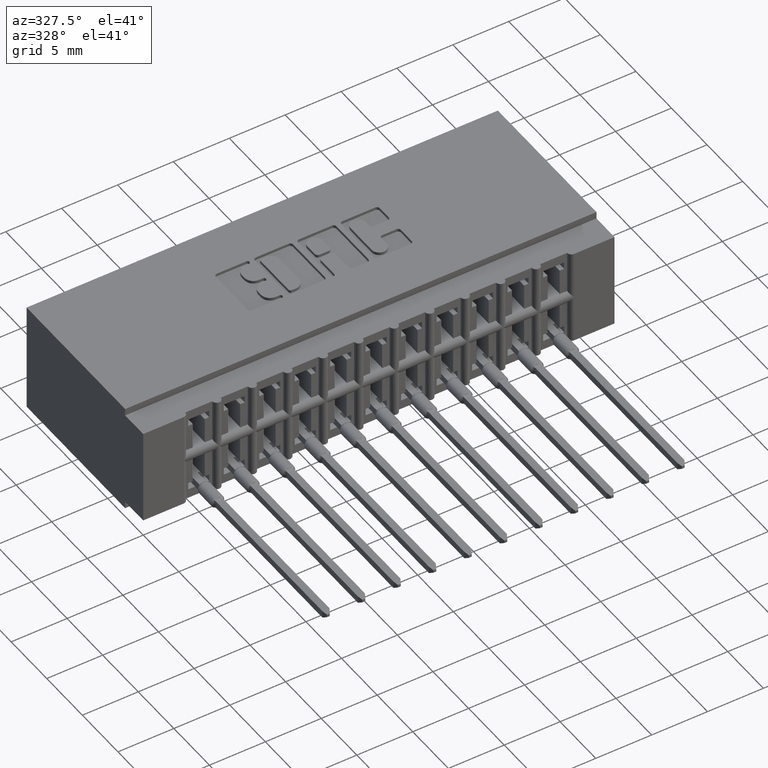
[diagram: clean part render]
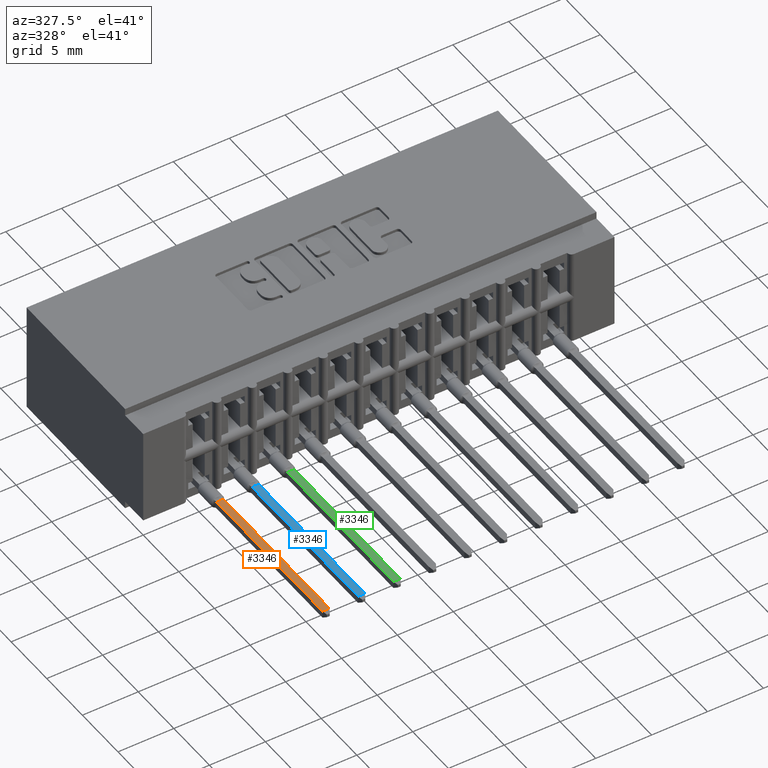
[diagram: same view with three faces highlighted in distinct colors, each labeled with its STEP entity id]
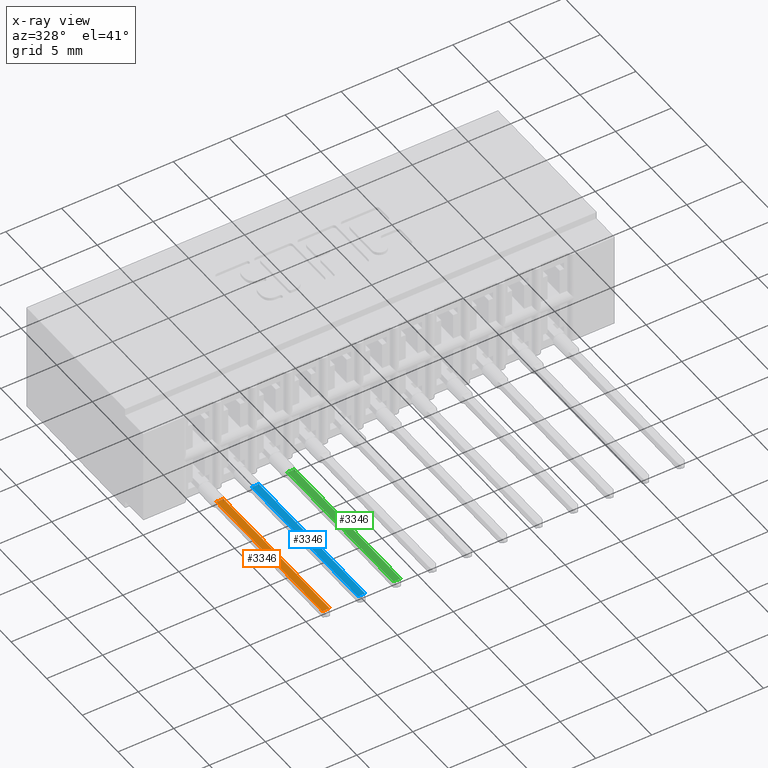
[diagram: x-ray of the same camera — body ghosted, the three highlighted faces saturated]
A machine part, auxiliary view with three faces highlighted in distinct colors.
The next image is the same camera in x-ray (body ghosted, the three faces saturated) — at least one of them is partly hidden behind the body in this view.
Their STEP definitions:

[orange] entity #3346 — the highlighted planar face has unit normal (0, 0, -1).
#190 = CARTESIAN_POINT ( 'NONE',  ( -0.001499999999998877665, 0.01250000000000013947, 0.08938749456993817788 ) ) ;
#882 = CARTESIAN_POINT ( 'NONE',  ( -0.001499999999998877665, 0.01250000000000013947, 0.08938749456993817788 ) ) ;
#1229 = DIRECTION ( 'NONE',  ( -3.432371129255528685E-15, 2.281027080316455145E-22, -1.000000000000000000 ) ) ;
#1364 = EDGE_CURVE ( 'NONE', #4907, #13521, #5957, .T. ) ;
#1531 = CARTESIAN_POINT ( 'NONE',  ( 0.01250277416173494090, 0.01250000000000000243, 0.08806058185612174183 ) ) ;
#1550 = CARTESIAN_POINT ( 'NONE',  ( -0.01250277416173248106, 0.01249999999999822781, 0.08806058185612021527 ) ) ;
#1777 = ORIENTED_EDGE ( 'NONE', *, *, #19561, .T. ) ;
#1921 = ORIENTED_EDGE ( 'NONE', *, *, #1364, .F. ) ;
#2021 = VERTEX_POINT ( 'NONE', #5388 ) ;
#2956 = B_SPLINE_CURVE_WITH_KNOTS ( 'NONE', 3,
 ( #190, #16468, #3589, #9658 ),
 .UNSPECIFIED., .F., .F.,
 ( 4, 4 ),
 ( 0.0000000000000000000, 0.0002821157609885972155 ),
 .UNSPECIFIED. ) ;
#3346 = ADVANCED_FACE ( 'NONE', ( #16024 ), #9425, .F. ) ;
#3589 = CARTESIAN_POINT ( 'NONE',  ( -0.008922339816379170480, 0.01249999999999822607, 0.08902420542786070035 ) ) ;
#4070 = ORIENTED_EDGE ( 'NONE', *, *, #18265, .T. ) ;
#4104 = LINE ( 'NONE', #7496, #4233 ) ;
#4233 = VECTOR ( 'NONE', #17391, 39.37007874015748143 ) ;
#4306 = DIRECTION ( 'NONE',  ( -3.432371129255528685E-15, 2.281027080316455145E-22, -1.000000000000000000 ) ) ;
#4546 = VECTOR ( 'NONE', #6058, 39.37007874015748143 ) ;
#4620 = ORIENTED_EDGE ( 'NONE', *, *, #15757, .T. ) ;
#4634 = CARTESIAN_POINT ( 'NONE',  ( 0.01250000000000130174, 0.01250000000000000243, 0.08836055168419777728 ) ) ;
#4760 = ORIENTED_EDGE ( 'NONE', *, *, #7635, .T. ) ;
#4856 = CARTESIAN_POINT ( 'NONE',  ( -0.01249999999999802311, 0.01249999999999822781, 0.1332500000000000073 ) ) ;
#4907 = VERTEX_POINT ( 'NONE', #13668 ) ;
#5326 = B_SPLINE_CURVE_WITH_KNOTS ( 'NONE', 3,
 ( #19440, #19120, #12743, #16150 ),
 .UNSPECIFIED., .F., .F.,
 ( 4, 4 ),
 ( -2.177742611627300596E-07, 0.0002818979867274307486 ),
 .UNSPECIFIED. ) ;
#5388 = CARTESIAN_POINT ( 'NONE',  ( 0.01250000000000130174, 0.01250000000000000243, 0.08836055168419777728 ) ) ;
#5624 = B_SPLINE_CURVE_WITH_KNOTS ( 'NONE', 3,
 ( #4634, #5995, #1531, #17502 ),
 .UNSPECIFIED., .F., .F.,
 ( 4, 4 ),
 ( 0.0000000000000000000, 1.142788424384338987E-05 ),
 .UNSPECIFIED. ) ;
#5957 = LINE ( 'NONE', #20632, #4546 ) ;
#5995 = CARTESIAN_POINT ( 'NONE',  ( 0.01250000000000130174, 0.01250000000000000243, 0.08821057945002661049 ) ) ;
#6058 = DIRECTION ( 'NONE',  ( -3.432371129255528685E-15, 2.281027080316455145E-22, -1.000000000000000000 ) ) ;
#6240 = DIRECTION ( 'NONE',  ( -1.000000000000000000, 8.281337601605895209E-16, -3.432371129255472282E-15 ) ) ;
#6457 = LINE ( 'NONE', #19542, #6851 ) ;
#6851 = VECTOR ( 'NONE', #6240, 39.37007874015748143 ) ;
#7081 = AXIS2_PLACEMENT_3D ( 'NONE', #4856, #19533, #1229 ) ;
#7334 = CARTESIAN_POINT ( 'NONE',  ( -0.01249999999999884190, 0.01249999999999822781, 0.08836055168419625072 ) ) ;
#7493 = CARTESIAN_POINT ( 'NONE',  ( 0.01250000000000321340, 0.01250000000000000243, 0.6752500000000023483 ) ) ;
#7496 = CARTESIAN_POINT ( 'NONE',  ( 0.01250000000000321340, 0.01250000000000000243, 0.6752500000000023483 ) ) ;
#7635 = EDGE_CURVE ( 'NONE', #19733, #13521, #17126, .T. ) ;
#8320 = CARTESIAN_POINT ( 'NONE',  ( 0.001500000000001062983, 0.01249999999999986712, 0.08938749456993817788 ) ) ;
#8945 = VERTEX_POINT ( 'NONE', #882 ) ;
#9200 = CARTESIAN_POINT ( 'NONE',  ( 0.01250830480091923332, 0.01250000000000000243, 0.08791071163542228672 ) ) ;
#9425 = PLANE ( 'NONE',  #7081 ) ;
#9444 = EDGE_CURVE ( 'NONE', #8945, #19733, #2956, .T. ) ;
#9658 = CARTESIAN_POINT ( 'NONE',  ( -0.01250830480091677521, 0.01249999999999822781, 0.08791071163542073241 ) ) ;
#9666 = EDGE_CURVE ( 'NONE', #14499, #2021, #17393, .T. ) ;
#9761 = VERTEX_POINT ( 'NONE', #9200 ) ;
#11403 = ORIENTED_EDGE ( 'NONE', *, *, #9444, .T. ) ;
#12618 = CARTESIAN_POINT ( 'NONE',  ( -0.01250830480091677521, 0.01249999999999822781, 0.08791071163542073241 ) ) ;
#12743 = CARTESIAN_POINT ( 'NONE',  ( 0.005235407192708726662, 0.01249999999999986539, 0.08938749456993823339 ) ) ;
#13252 = ORIENTED_EDGE ( 'NONE', *, *, #18714, .T. ) ;
#13438 = VERTEX_POINT ( 'NONE', #8320 ) ;
#13521 = VERTEX_POINT ( 'NONE', #7334 ) ;
#13668 = CARTESIAN_POINT ( 'NONE',  ( -0.01249999999999720258, 0.01249999999999822781, 0.6752500000000023483 ) ) ;
#14499 = VERTEX_POINT ( 'NONE', #7493 ) ;
#15724 = CARTESIAN_POINT ( 'NONE',  ( -0.01250830480091677521, 0.01249999999999822781, 0.08791071163542073241 ) ) ;
#15757 = EDGE_CURVE ( 'NONE', #4907, #14499, #4104, .T. ) ;
#16024 = FACE_OUTER_BOUND ( 'NONE', #20019, .T. ) ;
#16150 = CARTESIAN_POINT ( 'NONE',  ( 0.001500000000001062983, 0.01249999999999986712, 0.08938749456993817788 ) ) ;
#16458 = VECTOR ( 'NONE', #4306, 39.37007874015748143 ) ;
#16468 = CARTESIAN_POINT ( 'NONE',  ( -0.005235407192706590350, 0.01250000000000014121, 0.08938749456993816400 ) ) ;
#17126 = B_SPLINE_CURVE_WITH_KNOTS ( 'NONE', 3,
 ( #12618, #1550, #19107, #19431 ),
 .UNSPECIFIED., .F., .F.,
 ( 4, 4 ),
 ( 0.0000000000000000000, 1.142788424384376764E-05 ),
 .UNSPECIFIED. ) ;
#17185 = CARTESIAN_POINT ( 'NONE',  ( 0.01250000000000184644, 0.01249999999999713493, 0.1332500000000015616 ) ) ;
#17391 = DIRECTION ( 'NONE',  ( 1.000000000000000000, -8.281337601605895209E-16, 3.432371129255472282E-15 ) ) ;
#17393 = LINE ( 'NONE', #17185, #16458 ) ;
#17502 = CARTESIAN_POINT ( 'NONE',  ( 0.01250830480091923332, 0.01250000000000000243, 0.08791071163542228672 ) ) ;
#18265 = EDGE_CURVE ( 'NONE', #13438, #8945, #6457, .T. ) ;
#18714 = EDGE_CURVE ( 'NONE', #2021, #9761, #5624, .T. ) ;
#19107 = CARTESIAN_POINT ( 'NONE',  ( -0.01249999999999884190, 0.01249999999999822781, 0.08821057945002509781 ) ) ;
#19120 = CARTESIAN_POINT ( 'NONE',  ( 0.008922339816384562000, 0.01250000000000000590, 0.08902420542786135260 ) ) ;
#19431 = CARTESIAN_POINT ( 'NONE',  ( -0.01249999999999884190, 0.01249999999999822781, 0.08836055168419625072 ) ) ;
#19440 = CARTESIAN_POINT ( 'NONE',  ( 0.01250830480091923332, 0.01250000000000000243, 0.08791071163542228672 ) ) ;
#19533 = DIRECTION ( 'NONE',  ( 8.281337601605901126E-16, -1.000000000000000000, -2.281027108741079340E-22 ) ) ;
#19542 = CARTESIAN_POINT ( 'NONE',  ( -0.01249999999999884190, 0.01249999999999822781, 0.08938749456993817788 ) ) ;
#19561 = EDGE_CURVE ( 'NONE', #9761, #13438, #5326, .T. ) ;
#19733 = VERTEX_POINT ( 'NONE', #15724 ) ;
#20019 = EDGE_LOOP ( 'NONE', ( #1921, #4620, #20841, #13252, #1777, #4070, #11403, #4760 ) ) ;
#20632 = CARTESIAN_POINT ( 'NONE',  ( -0.01249999999999802311, 0.01249999999999822781, 0.1332500000000000073 ) ) ;
#20841 = ORIENTED_EDGE ( 'NONE', *, *, #9666, .T. ) ;

[blue] entity #3346 — the highlighted planar face has unit normal (0, 0, -1).
#190 = CARTESIAN_POINT ( 'NONE',  ( -0.001499999999998877665, 0.01250000000000013947, 0.08938749456993817788 ) ) ;
#882 = CARTESIAN_POINT ( 'NONE',  ( -0.001499999999998877665, 0.01250000000000013947, 0.08938749456993817788 ) ) ;
#1229 = DIRECTION ( 'NONE',  ( -3.432371129255528685E-15, 2.281027080316455145E-22, -1.000000000000000000 ) ) ;
#1364 = EDGE_CURVE ( 'NONE', #4907, #13521, #5957, .T. ) ;
#1531 = CARTESIAN_POINT ( 'NONE',  ( 0.01250277416173494090, 0.01250000000000000243, 0.08806058185612174183 ) ) ;
#1550 = CARTESIAN_POINT ( 'NONE',  ( -0.01250277416173248106, 0.01249999999999822781, 0.08806058185612021527 ) ) ;
#1777 = ORIENTED_EDGE ( 'NONE', *, *, #19561, .T. ) ;
#1921 = ORIENTED_EDGE ( 'NONE', *, *, #1364, .F. ) ;
#2021 = VERTEX_POINT ( 'NONE', #5388 ) ;
#2956 = B_SPLINE_CURVE_WITH_KNOTS ( 'NONE', 3,
 ( #190, #16468, #3589, #9658 ),
 .UNSPECIFIED., .F., .F.,
 ( 4, 4 ),
 ( 0.0000000000000000000, 0.0002821157609885972155 ),
 .UNSPECIFIED. ) ;
#3346 = ADVANCED_FACE ( 'NONE', ( #16024 ), #9425, .F. ) ;
#3589 = CARTESIAN_POINT ( 'NONE',  ( -0.008922339816379170480, 0.01249999999999822607, 0.08902420542786070035 ) ) ;
#4070 = ORIENTED_EDGE ( 'NONE', *, *, #18265, .T. ) ;
#4104 = LINE ( 'NONE', #7496, #4233 ) ;
#4233 = VECTOR ( 'NONE', #17391, 39.37007874015748143 ) ;
#4306 = DIRECTION ( 'NONE',  ( -3.432371129255528685E-15, 2.281027080316455145E-22, -1.000000000000000000 ) ) ;
#4546 = VECTOR ( 'NONE', #6058, 39.37007874015748143 ) ;
#4620 = ORIENTED_EDGE ( 'NONE', *, *, #15757, .T. ) ;
#4634 = CARTESIAN_POINT ( 'NONE',  ( 0.01250000000000130174, 0.01250000000000000243, 0.08836055168419777728 ) ) ;
#4760 = ORIENTED_EDGE ( 'NONE', *, *, #7635, .T. ) ;
#4856 = CARTESIAN_POINT ( 'NONE',  ( -0.01249999999999802311, 0.01249999999999822781, 0.1332500000000000073 ) ) ;
#4907 = VERTEX_POINT ( 'NONE', #13668 ) ;
#5326 = B_SPLINE_CURVE_WITH_KNOTS ( 'NONE', 3,
 ( #19440, #19120, #12743, #16150 ),
 .UNSPECIFIED., .F., .F.,
 ( 4, 4 ),
 ( -2.177742611627300596E-07, 0.0002818979867274307486 ),
 .UNSPECIFIED. ) ;
#5388 = CARTESIAN_POINT ( 'NONE',  ( 0.01250000000000130174, 0.01250000000000000243, 0.08836055168419777728 ) ) ;
#5624 = B_SPLINE_CURVE_WITH_KNOTS ( 'NONE', 3,
 ( #4634, #5995, #1531, #17502 ),
 .UNSPECIFIED., .F., .F.,
 ( 4, 4 ),
 ( 0.0000000000000000000, 1.142788424384338987E-05 ),
 .UNSPECIFIED. ) ;
#5957 = LINE ( 'NONE', #20632, #4546 ) ;
#5995 = CARTESIAN_POINT ( 'NONE',  ( 0.01250000000000130174, 0.01250000000000000243, 0.08821057945002661049 ) ) ;
#6058 = DIRECTION ( 'NONE',  ( -3.432371129255528685E-15, 2.281027080316455145E-22, -1.000000000000000000 ) ) ;
#6240 = DIRECTION ( 'NONE',  ( -1.000000000000000000, 8.281337601605895209E-16, -3.432371129255472282E-15 ) ) ;
#6457 = LINE ( 'NONE', #19542, #6851 ) ;
#6851 = VECTOR ( 'NONE', #6240, 39.37007874015748143 ) ;
#7081 = AXIS2_PLACEMENT_3D ( 'NONE', #4856, #19533, #1229 ) ;
#7334 = CARTESIAN_POINT ( 'NONE',  ( -0.01249999999999884190, 0.01249999999999822781, 0.08836055168419625072 ) ) ;
#7493 = CARTESIAN_POINT ( 'NONE',  ( 0.01250000000000321340, 0.01250000000000000243, 0.6752500000000023483 ) ) ;
#7496 = CARTESIAN_POINT ( 'NONE',  ( 0.01250000000000321340, 0.01250000000000000243, 0.6752500000000023483 ) ) ;
#7635 = EDGE_CURVE ( 'NONE', #19733, #13521, #17126, .T. ) ;
#8320 = CARTESIAN_POINT ( 'NONE',  ( 0.001500000000001062983, 0.01249999999999986712, 0.08938749456993817788 ) ) ;
#8945 = VERTEX_POINT ( 'NONE', #882 ) ;
#9200 = CARTESIAN_POINT ( 'NONE',  ( 0.01250830480091923332, 0.01250000000000000243, 0.08791071163542228672 ) ) ;
#9425 = PLANE ( 'NONE',  #7081 ) ;
#9444 = EDGE_CURVE ( 'NONE', #8945, #19733, #2956, .T. ) ;
#9658 = CARTESIAN_POINT ( 'NONE',  ( -0.01250830480091677521, 0.01249999999999822781, 0.08791071163542073241 ) ) ;
#9666 = EDGE_CURVE ( 'NONE', #14499, #2021, #17393, .T. ) ;
#9761 = VERTEX_POINT ( 'NONE', #9200 ) ;
#11403 = ORIENTED_EDGE ( 'NONE', *, *, #9444, .T. ) ;
#12618 = CARTESIAN_POINT ( 'NONE',  ( -0.01250830480091677521, 0.01249999999999822781, 0.08791071163542073241 ) ) ;
#12743 = CARTESIAN_POINT ( 'NONE',  ( 0.005235407192708726662, 0.01249999999999986539, 0.08938749456993823339 ) ) ;
#13252 = ORIENTED_EDGE ( 'NONE', *, *, #18714, .T. ) ;
#13438 = VERTEX_POINT ( 'NONE', #8320 ) ;
#13521 = VERTEX_POINT ( 'NONE', #7334 ) ;
#13668 = CARTESIAN_POINT ( 'NONE',  ( -0.01249999999999720258, 0.01249999999999822781, 0.6752500000000023483 ) ) ;
#14499 = VERTEX_POINT ( 'NONE', #7493 ) ;
#15724 = CARTESIAN_POINT ( 'NONE',  ( -0.01250830480091677521, 0.01249999999999822781, 0.08791071163542073241 ) ) ;
#15757 = EDGE_CURVE ( 'NONE', #4907, #14499, #4104, .T. ) ;
#16024 = FACE_OUTER_BOUND ( 'NONE', #20019, .T. ) ;
#16150 = CARTESIAN_POINT ( 'NONE',  ( 0.001500000000001062983, 0.01249999999999986712, 0.08938749456993817788 ) ) ;
#16458 = VECTOR ( 'NONE', #4306, 39.37007874015748143 ) ;
#16468 = CARTESIAN_POINT ( 'NONE',  ( -0.005235407192706590350, 0.01250000000000014121, 0.08938749456993816400 ) ) ;
#17126 = B_SPLINE_CURVE_WITH_KNOTS ( 'NONE', 3,
 ( #12618, #1550, #19107, #19431 ),
 .UNSPECIFIED., .F., .F.,
 ( 4, 4 ),
 ( 0.0000000000000000000, 1.142788424384376764E-05 ),
 .UNSPECIFIED. ) ;
#17185 = CARTESIAN_POINT ( 'NONE',  ( 0.01250000000000184644, 0.01249999999999713493, 0.1332500000000015616 ) ) ;
#17391 = DIRECTION ( 'NONE',  ( 1.000000000000000000, -8.281337601605895209E-16, 3.432371129255472282E-15 ) ) ;
#17393 = LINE ( 'NONE', #17185, #16458 ) ;
#17502 = CARTESIAN_POINT ( 'NONE',  ( 0.01250830480091923332, 0.01250000000000000243, 0.08791071163542228672 ) ) ;
#18265 = EDGE_CURVE ( 'NONE', #13438, #8945, #6457, .T. ) ;
#18714 = EDGE_CURVE ( 'NONE', #2021, #9761, #5624, .T. ) ;
#19107 = CARTESIAN_POINT ( 'NONE',  ( -0.01249999999999884190, 0.01249999999999822781, 0.08821057945002509781 ) ) ;
#19120 = CARTESIAN_POINT ( 'NONE',  ( 0.008922339816384562000, 0.01250000000000000590, 0.08902420542786135260 ) ) ;
#19431 = CARTESIAN_POINT ( 'NONE',  ( -0.01249999999999884190, 0.01249999999999822781, 0.08836055168419625072 ) ) ;
#19440 = CARTESIAN_POINT ( 'NONE',  ( 0.01250830480091923332, 0.01250000000000000243, 0.08791071163542228672 ) ) ;
#19533 = DIRECTION ( 'NONE',  ( 8.281337601605901126E-16, -1.000000000000000000, -2.281027108741079340E-22 ) ) ;
#19542 = CARTESIAN_POINT ( 'NONE',  ( -0.01249999999999884190, 0.01249999999999822781, 0.08938749456993817788 ) ) ;
#19561 = EDGE_CURVE ( 'NONE', #9761, #13438, #5326, .T. ) ;
#19733 = VERTEX_POINT ( 'NONE', #15724 ) ;
#20019 = EDGE_LOOP ( 'NONE', ( #1921, #4620, #20841, #13252, #1777, #4070, #11403, #4760 ) ) ;
#20632 = CARTESIAN_POINT ( 'NONE',  ( -0.01249999999999802311, 0.01249999999999822781, 0.1332500000000000073 ) ) ;
#20841 = ORIENTED_EDGE ( 'NONE', *, *, #9666, .T. ) ;

[green] entity #3346 — the highlighted planar face has unit normal (0, 0, -1).
#190 = CARTESIAN_POINT ( 'NONE',  ( -0.001499999999998877665, 0.01250000000000013947, 0.08938749456993817788 ) ) ;
#882 = CARTESIAN_POINT ( 'NONE',  ( -0.001499999999998877665, 0.01250000000000013947, 0.08938749456993817788 ) ) ;
#1229 = DIRECTION ( 'NONE',  ( -3.432371129255528685E-15, 2.281027080316455145E-22, -1.000000000000000000 ) ) ;
#1364 = EDGE_CURVE ( 'NONE', #4907, #13521, #5957, .T. ) ;
#1531 = CARTESIAN_POINT ( 'NONE',  ( 0.01250277416173494090, 0.01250000000000000243, 0.08806058185612174183 ) ) ;
#1550 = CARTESIAN_POINT ( 'NONE',  ( -0.01250277416173248106, 0.01249999999999822781, 0.08806058185612021527 ) ) ;
#1777 = ORIENTED_EDGE ( 'NONE', *, *, #19561, .T. ) ;
#1921 = ORIENTED_EDGE ( 'NONE', *, *, #1364, .F. ) ;
#2021 = VERTEX_POINT ( 'NONE', #5388 ) ;
#2956 = B_SPLINE_CURVE_WITH_KNOTS ( 'NONE', 3,
 ( #190, #16468, #3589, #9658 ),
 .UNSPECIFIED., .F., .F.,
 ( 4, 4 ),
 ( 0.0000000000000000000, 0.0002821157609885972155 ),
 .UNSPECIFIED. ) ;
#3346 = ADVANCED_FACE ( 'NONE', ( #16024 ), #9425, .F. ) ;
#3589 = CARTESIAN_POINT ( 'NONE',  ( -0.008922339816379170480, 0.01249999999999822607, 0.08902420542786070035 ) ) ;
#4070 = ORIENTED_EDGE ( 'NONE', *, *, #18265, .T. ) ;
#4104 = LINE ( 'NONE', #7496, #4233 ) ;
#4233 = VECTOR ( 'NONE', #17391, 39.37007874015748143 ) ;
#4306 = DIRECTION ( 'NONE',  ( -3.432371129255528685E-15, 2.281027080316455145E-22, -1.000000000000000000 ) ) ;
#4546 = VECTOR ( 'NONE', #6058, 39.37007874015748143 ) ;
#4620 = ORIENTED_EDGE ( 'NONE', *, *, #15757, .T. ) ;
#4634 = CARTESIAN_POINT ( 'NONE',  ( 0.01250000000000130174, 0.01250000000000000243, 0.08836055168419777728 ) ) ;
#4760 = ORIENTED_EDGE ( 'NONE', *, *, #7635, .T. ) ;
#4856 = CARTESIAN_POINT ( 'NONE',  ( -0.01249999999999802311, 0.01249999999999822781, 0.1332500000000000073 ) ) ;
#4907 = VERTEX_POINT ( 'NONE', #13668 ) ;
#5326 = B_SPLINE_CURVE_WITH_KNOTS ( 'NONE', 3,
 ( #19440, #19120, #12743, #16150 ),
 .UNSPECIFIED., .F., .F.,
 ( 4, 4 ),
 ( -2.177742611627300596E-07, 0.0002818979867274307486 ),
 .UNSPECIFIED. ) ;
#5388 = CARTESIAN_POINT ( 'NONE',  ( 0.01250000000000130174, 0.01250000000000000243, 0.08836055168419777728 ) ) ;
#5624 = B_SPLINE_CURVE_WITH_KNOTS ( 'NONE', 3,
 ( #4634, #5995, #1531, #17502 ),
 .UNSPECIFIED., .F., .F.,
 ( 4, 4 ),
 ( 0.0000000000000000000, 1.142788424384338987E-05 ),
 .UNSPECIFIED. ) ;
#5957 = LINE ( 'NONE', #20632, #4546 ) ;
#5995 = CARTESIAN_POINT ( 'NONE',  ( 0.01250000000000130174, 0.01250000000000000243, 0.08821057945002661049 ) ) ;
#6058 = DIRECTION ( 'NONE',  ( -3.432371129255528685E-15, 2.281027080316455145E-22, -1.000000000000000000 ) ) ;
#6240 = DIRECTION ( 'NONE',  ( -1.000000000000000000, 8.281337601605895209E-16, -3.432371129255472282E-15 ) ) ;
#6457 = LINE ( 'NONE', #19542, #6851 ) ;
#6851 = VECTOR ( 'NONE', #6240, 39.37007874015748143 ) ;
#7081 = AXIS2_PLACEMENT_3D ( 'NONE', #4856, #19533, #1229 ) ;
#7334 = CARTESIAN_POINT ( 'NONE',  ( -0.01249999999999884190, 0.01249999999999822781, 0.08836055168419625072 ) ) ;
#7493 = CARTESIAN_POINT ( 'NONE',  ( 0.01250000000000321340, 0.01250000000000000243, 0.6752500000000023483 ) ) ;
#7496 = CARTESIAN_POINT ( 'NONE',  ( 0.01250000000000321340, 0.01250000000000000243, 0.6752500000000023483 ) ) ;
#7635 = EDGE_CURVE ( 'NONE', #19733, #13521, #17126, .T. ) ;
#8320 = CARTESIAN_POINT ( 'NONE',  ( 0.001500000000001062983, 0.01249999999999986712, 0.08938749456993817788 ) ) ;
#8945 = VERTEX_POINT ( 'NONE', #882 ) ;
#9200 = CARTESIAN_POINT ( 'NONE',  ( 0.01250830480091923332, 0.01250000000000000243, 0.08791071163542228672 ) ) ;
#9425 = PLANE ( 'NONE',  #7081 ) ;
#9444 = EDGE_CURVE ( 'NONE', #8945, #19733, #2956, .T. ) ;
#9658 = CARTESIAN_POINT ( 'NONE',  ( -0.01250830480091677521, 0.01249999999999822781, 0.08791071163542073241 ) ) ;
#9666 = EDGE_CURVE ( 'NONE', #14499, #2021, #17393, .T. ) ;
#9761 = VERTEX_POINT ( 'NONE', #9200 ) ;
#11403 = ORIENTED_EDGE ( 'NONE', *, *, #9444, .T. ) ;
#12618 = CARTESIAN_POINT ( 'NONE',  ( -0.01250830480091677521, 0.01249999999999822781, 0.08791071163542073241 ) ) ;
#12743 = CARTESIAN_POINT ( 'NONE',  ( 0.005235407192708726662, 0.01249999999999986539, 0.08938749456993823339 ) ) ;
#13252 = ORIENTED_EDGE ( 'NONE', *, *, #18714, .T. ) ;
#13438 = VERTEX_POINT ( 'NONE', #8320 ) ;
#13521 = VERTEX_POINT ( 'NONE', #7334 ) ;
#13668 = CARTESIAN_POINT ( 'NONE',  ( -0.01249999999999720258, 0.01249999999999822781, 0.6752500000000023483 ) ) ;
#14499 = VERTEX_POINT ( 'NONE', #7493 ) ;
#15724 = CARTESIAN_POINT ( 'NONE',  ( -0.01250830480091677521, 0.01249999999999822781, 0.08791071163542073241 ) ) ;
#15757 = EDGE_CURVE ( 'NONE', #4907, #14499, #4104, .T. ) ;
#16024 = FACE_OUTER_BOUND ( 'NONE', #20019, .T. ) ;
#16150 = CARTESIAN_POINT ( 'NONE',  ( 0.001500000000001062983, 0.01249999999999986712, 0.08938749456993817788 ) ) ;
#16458 = VECTOR ( 'NONE', #4306, 39.37007874015748143 ) ;
#16468 = CARTESIAN_POINT ( 'NONE',  ( -0.005235407192706590350, 0.01250000000000014121, 0.08938749456993816400 ) ) ;
#17126 = B_SPLINE_CURVE_WITH_KNOTS ( 'NONE', 3,
 ( #12618, #1550, #19107, #19431 ),
 .UNSPECIFIED., .F., .F.,
 ( 4, 4 ),
 ( 0.0000000000000000000, 1.142788424384376764E-05 ),
 .UNSPECIFIED. ) ;
#17185 = CARTESIAN_POINT ( 'NONE',  ( 0.01250000000000184644, 0.01249999999999713493, 0.1332500000000015616 ) ) ;
#17391 = DIRECTION ( 'NONE',  ( 1.000000000000000000, -8.281337601605895209E-16, 3.432371129255472282E-15 ) ) ;
#17393 = LINE ( 'NONE', #17185, #16458 ) ;
#17502 = CARTESIAN_POINT ( 'NONE',  ( 0.01250830480091923332, 0.01250000000000000243, 0.08791071163542228672 ) ) ;
#18265 = EDGE_CURVE ( 'NONE', #13438, #8945, #6457, .T. ) ;
#18714 = EDGE_CURVE ( 'NONE', #2021, #9761, #5624, .T. ) ;
#19107 = CARTESIAN_POINT ( 'NONE',  ( -0.01249999999999884190, 0.01249999999999822781, 0.08821057945002509781 ) ) ;
#19120 = CARTESIAN_POINT ( 'NONE',  ( 0.008922339816384562000, 0.01250000000000000590, 0.08902420542786135260 ) ) ;
#19431 = CARTESIAN_POINT ( 'NONE',  ( -0.01249999999999884190, 0.01249999999999822781, 0.08836055168419625072 ) ) ;
#19440 = CARTESIAN_POINT ( 'NONE',  ( 0.01250830480091923332, 0.01250000000000000243, 0.08791071163542228672 ) ) ;
#19533 = DIRECTION ( 'NONE',  ( 8.281337601605901126E-16, -1.000000000000000000, -2.281027108741079340E-22 ) ) ;
#19542 = CARTESIAN_POINT ( 'NONE',  ( -0.01249999999999884190, 0.01249999999999822781, 0.08938749456993817788 ) ) ;
#19561 = EDGE_CURVE ( 'NONE', #9761, #13438, #5326, .T. ) ;
#19733 = VERTEX_POINT ( 'NONE', #15724 ) ;
#20019 = EDGE_LOOP ( 'NONE', ( #1921, #4620, #20841, #13252, #1777, #4070, #11403, #4760 ) ) ;
#20632 = CARTESIAN_POINT ( 'NONE',  ( -0.01249999999999802311, 0.01249999999999822781, 0.1332500000000000073 ) ) ;
#20841 = ORIENTED_EDGE ( 'NONE', *, *, #9666, .T. ) ;